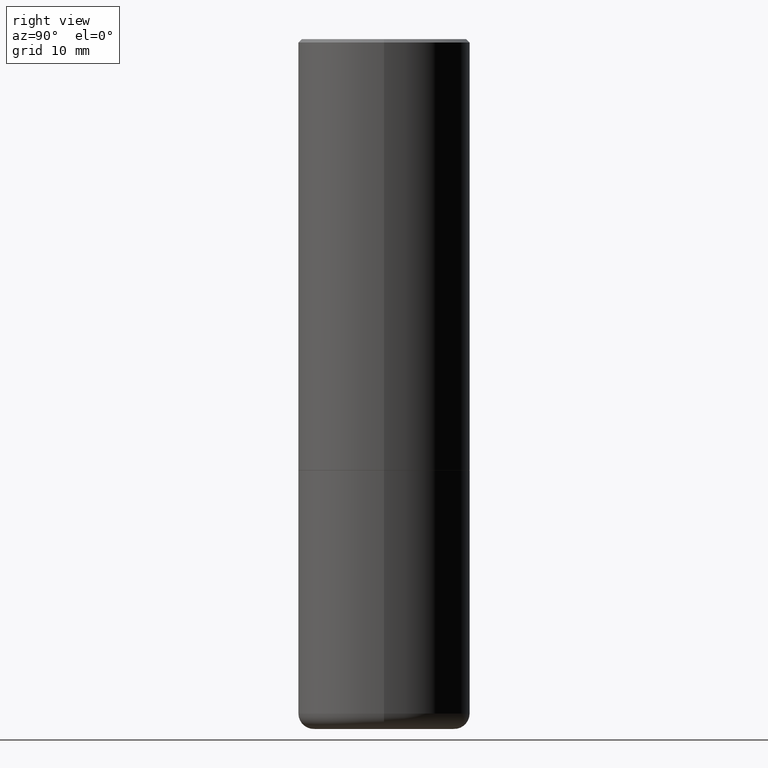
[diagram: clean part render]
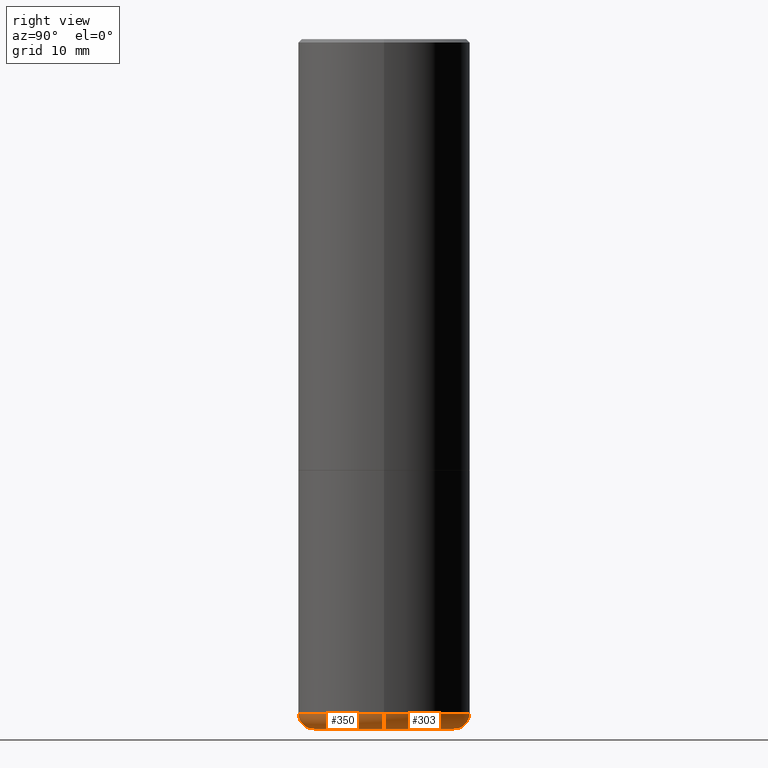
[diagram: same view with one multi-face feature highlighted, each face labeled with its STEP entity id]
A machine part, right view. The highlighted faces form ONE feature: a constant-radius fillet chain: 2 tangent blend faces with common blend radius 2.286 mm. The faces share edges in the B-rep.
Their STEP definitions:
[1] entity #350 (Torus):
#5 = AXIS2_PLACEMENT_3D ( 'NONE', #48, #201, #128 ) ;
#7 = DIRECTION ( 'NONE',  ( 1.000000000000000000, -6.982962677686266711E-15, 4.883557194083113462E-29 ) ) ;
#14 = EDGE_LOOP ( 'NONE', ( #214, #168, #322, #349 ) ) ;
#23 = VERTEX_POINT ( 'NONE', #265 ) ;
#36 = EDGE_CURVE ( 'NONE', #422, #287, #150, .T. ) ;
#45 = DIRECTION ( 'NONE',  ( 7.105427357601001859E-15, 1.000000000000000000, -3.491481338843145583E-15 ) ) ;
#46 = CARTESIAN_POINT ( 'NONE',  ( 9.562084660884571289E-29, -1.365212268072139138E-14, -3.910123341872087988 ) ) ;
#48 = CARTESIAN_POINT ( 'NONE',  ( 9.562084660884571289E-29, -1.365212268072139138E-14, -3.910123341872087988 ) ) ;
#50 = AXIS2_PLACEMENT_3D ( 'NONE', #341, #98, #103 ) ;
#58 = CIRCLE ( 'NONE', #74, 0.08999999999999999667 ) ;
#68 = DIRECTION ( 'NONE',  ( 1.000000000000000000, -6.982962677686269077E-15, 0.000000000000000000 ) ) ;
#70 = FACE_OUTER_BOUND ( 'NONE', #14, .T. ) ;
#74 = AXIS2_PLACEMENT_3D ( 'NONE', #145, #45, #175 ) ;
#98 = DIRECTION ( 'NONE',  ( -2.445468806185136597E-29, 3.491481338843145583E-15, 1.000000000000000000 ) ) ;
#103 = DIRECTION ( 'NONE',  ( 1.000000000000000000, -6.982962677686269077E-15, 0.000000000000000000 ) ) ;
#122 = DIRECTION ( 'NONE',  ( -6.982962677686266711E-15, -1.000000000000000000, 3.491481338843145583E-15 ) ) ;
#128 = DIRECTION ( 'NONE',  ( 1.000000000000000000, -6.982962677686266711E-15, 0.000000000000000000 ) ) ;
#145 = CARTESIAN_POINT ( 'NONE',  ( -0.4099999999999999756, -1.073889746410498118E-14, -3.910123341872087988 ) ) ;
#150 = CIRCLE ( 'NONE', #318, 0.08999999999999999667 ) ;
#168 = ORIENTED_EDGE ( 'NONE', *, *, #319, .T. ) ;
#175 = DIRECTION ( 'NONE',  ( -1.000000000000000000, 7.105427357600990815E-15, 0.000000000000000000 ) ) ;
#180 = DIRECTION ( 'NONE',  ( -2.445468806185136597E-29, 3.491481338843145583E-15, 1.000000000000000000 ) ) ;
#201 = DIRECTION ( 'NONE',  ( -2.445468806185136597E-29, 3.491481338843145583E-15, 1.000000000000000000 ) ) ;
#214 = ORIENTED_EDGE ( 'NONE', *, *, #225, .F. ) ;
#222 = AXIS2_PLACEMENT_3D ( 'NONE', #46, #180, #7 ) ;
#225 = EDGE_CURVE ( 'NONE', #23, #313, #58, .T. ) ;
#232 = CIRCLE ( 'NONE', #5, 0.5000000000000000000 ) ;
#241 = CARTESIAN_POINT ( 'NONE',  ( -0.5000000000000000000, -7.637699335114127230E-15, -3.910123341872087988 ) ) ;
#265 = CARTESIAN_POINT ( 'NONE',  ( -0.4052897639381357053, -1.059278869042589352E-14, -3.999999999999999556 ) ) ;
#280 = EDGE_CURVE ( 'NONE', #313, #287, #232, .T. ) ;
#284 = CARTESIAN_POINT ( 'NONE',  ( 0.4052897639381357053, -1.679604865060086105E-14, -3.999999999999999556 ) ) ;
#287 = VERTEX_POINT ( 'NONE', #401 ) ;
#313 = VERTEX_POINT ( 'NONE', #241 ) ;
#318 = AXIS2_PLACEMENT_3D ( 'NONE', #402, #122, #68 ) ;
#319 = EDGE_CURVE ( 'NONE', #23, #422, #334, .T. ) ;
#322 = ORIENTED_EDGE ( 'NONE', *, *, #36, .T. ) ;
#334 = CIRCLE ( 'NONE', #50, 0.4052897639381357053 ) ;
#341 = CARTESIAN_POINT ( 'NONE',  ( 9.781875224740545266E-29, -1.396592535537258075E-14, -3.999999999999999556 ) ) ;
#349 = ORIENTED_EDGE ( 'NONE', *, *, #280, .F. ) ;
#350 = ADVANCED_FACE ( 'NONE', ( #70 ), #437, .T. ) ;
#401 = CARTESIAN_POINT ( 'NONE',  ( 0.5000000000000000000, -1.714360401956452473E-14, -3.910123341872087988 ) ) ;
#402 = CARTESIAN_POINT ( 'NONE',  ( 0.4099999999999999756, -1.651513737857276136E-14, -3.910123341872087988 ) ) ;
#422 = VERTEX_POINT ( 'NONE', #284 ) ;
#437 = TOROIDAL_SURFACE ( 'NONE', #222, 0.4099999999999999756, 0.08999999999999998279 ) ;
[2] entity #303 (Torus):
#1 = ORIENTED_EDGE ( 'NONE', *, *, #252, .F. ) ;
#23 = VERTEX_POINT ( 'NONE', #265 ) ;
#31 = ORIENTED_EDGE ( 'NONE', *, *, #225, .T. ) ;
#36 = EDGE_CURVE ( 'NONE', #422, #287, #150, .T. ) ;
#38 = DIRECTION ( 'NONE',  ( 1.000000000000000000, -6.982962677686266711E-15, 0.000000000000000000 ) ) ;
#45 = DIRECTION ( 'NONE',  ( 7.105427357601001859E-15, 1.000000000000000000, -3.491481338843145583E-15 ) ) ;
#58 = CIRCLE ( 'NONE', #74, 0.08999999999999999667 ) ;
#62 = ORIENTED_EDGE ( 'NONE', *, *, #36, .F. ) ;
#68 = DIRECTION ( 'NONE',  ( 1.000000000000000000, -6.982962677686269077E-15, 0.000000000000000000 ) ) ;
#74 = AXIS2_PLACEMENT_3D ( 'NONE', #145, #45, #175 ) ;
#77 = CARTESIAN_POINT ( 'NONE',  ( 9.781875224740545266E-29, -1.396592535537258075E-14, -3.999999999999999556 ) ) ;
#121 = EDGE_CURVE ( 'NONE', #422, #23, #196, .T. ) ;
#122 = DIRECTION ( 'NONE',  ( -6.982962677686266711E-15, -1.000000000000000000, 3.491481338843145583E-15 ) ) ;
#145 = CARTESIAN_POINT ( 'NONE',  ( -0.4099999999999999756, -1.073889746410498118E-14, -3.910123341872087988 ) ) ;
#147 = CARTESIAN_POINT ( 'NONE',  ( 9.562084660884571289E-29, -1.365212268072139138E-14, -3.910123341872087988 ) ) ;
#150 = CIRCLE ( 'NONE', #318, 0.08999999999999999667 ) ;
#161 = AXIS2_PLACEMENT_3D ( 'NONE', #147, #174, #38 ) ;
#174 = DIRECTION ( 'NONE',  ( -2.445468806185136597E-29, 3.491481338843145583E-15, 1.000000000000000000 ) ) ;
#175 = DIRECTION ( 'NONE',  ( -1.000000000000000000, 7.105427357600990815E-15, 0.000000000000000000 ) ) ;
#185 = DIRECTION ( 'NONE',  ( 1.000000000000000000, -6.982962677686269077E-15, 0.000000000000000000 ) ) ;
#191 = TOROIDAL_SURFACE ( 'NONE', #300, 0.4099999999999999756, 0.08999999999999998279 ) ;
#196 = CIRCLE ( 'NONE', #258, 0.4052897639381357053 ) ;
#211 = DIRECTION ( 'NONE',  ( -2.445468806185136597E-29, 3.491481338843145583E-15, 1.000000000000000000 ) ) ;
#225 = EDGE_CURVE ( 'NONE', #23, #313, #58, .T. ) ;
#239 = FACE_OUTER_BOUND ( 'NONE', #367, .T. ) ;
#241 = CARTESIAN_POINT ( 'NONE',  ( -0.5000000000000000000, -7.637699335114127230E-15, -3.910123341872087988 ) ) ;
#252 = EDGE_CURVE ( 'NONE', #287, #313, #403, .T. ) ;
#258 = AXIS2_PLACEMENT_3D ( 'NONE', #77, #211, #185 ) ;
#264 = CARTESIAN_POINT ( 'NONE',  ( 9.562084660884571289E-29, -1.365212268072139138E-14, -3.910123341872087988 ) ) ;
#265 = CARTESIAN_POINT ( 'NONE',  ( -0.4052897639381357053, -1.059278869042589352E-14, -3.999999999999999556 ) ) ;
#283 = ORIENTED_EDGE ( 'NONE', *, *, #121, .T. ) ;
#284 = CARTESIAN_POINT ( 'NONE',  ( 0.4052897639381357053, -1.679604865060086105E-14, -3.999999999999999556 ) ) ;
#287 = VERTEX_POINT ( 'NONE', #401 ) ;
#300 = AXIS2_PLACEMENT_3D ( 'NONE', #264, #406, #410 ) ;
#303 = ADVANCED_FACE ( 'NONE', ( #239 ), #191, .T. ) ;
#313 = VERTEX_POINT ( 'NONE', #241 ) ;
#318 = AXIS2_PLACEMENT_3D ( 'NONE', #402, #122, #68 ) ;
#367 = EDGE_LOOP ( 'NONE', ( #283, #31, #1, #62 ) ) ;
#401 = CARTESIAN_POINT ( 'NONE',  ( 0.5000000000000000000, -1.714360401956452473E-14, -3.910123341872087988 ) ) ;
#402 = CARTESIAN_POINT ( 'NONE',  ( 0.4099999999999999756, -1.651513737857276136E-14, -3.910123341872087988 ) ) ;
#403 = CIRCLE ( 'NONE', #161, 0.5000000000000000000 ) ;
#406 = DIRECTION ( 'NONE',  ( -2.445468806185136597E-29, 3.491481338843145583E-15, 1.000000000000000000 ) ) ;
#410 = DIRECTION ( 'NONE',  ( 1.000000000000000000, -6.982962677686266711E-15, 4.883557194083113462E-29 ) ) ;
#422 = VERTEX_POINT ( 'NONE', #284 ) ;